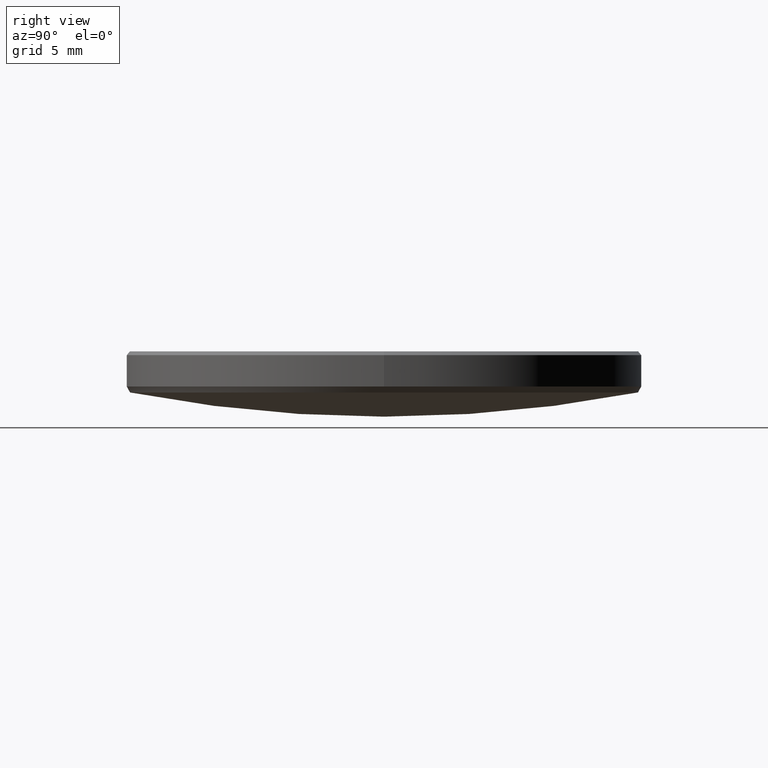
[diagram: clean part render]
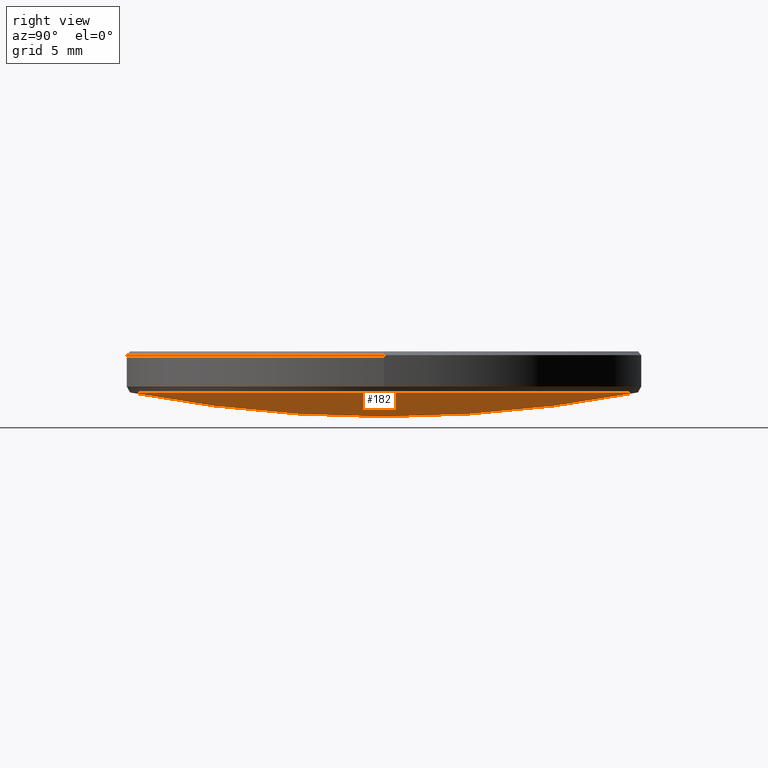
[diagram: same view with one face highlighted and labeled with its STEP entity id]
A machine part, right view. The second image highlights one B-rep face of the part: STEP entity #182.
In plain terms, the highlighted spherical surface has radius 66.15 mm.
Its self-contained STEP definition (entity closure, byte-faithful):
#7 = CARTESIAN_POINT ( 'NONE',  ( 0.000000000000000000, 4.050519288179870232E-15, 2.769430835459427254 ) ) ;
#15 = DIRECTION ( 'NONE',  ( 1.000000000000000000, -0.000000000000000000, 0.000000000000000000 ) ) ;
#27 = ORIENTED_EDGE ( 'NONE', *, *, #91, .F. ) ;
#35 = EDGE_LOOP ( 'NONE', ( #27, #104, #101, #306 ) ) ;
#58 = DIRECTION ( 'NONE',  ( 0.000000000000000000, 0.000000000000000000, -1.000000000000000000 ) ) ;
#59 = CARTESIAN_POINT ( 'NONE',  ( 0.000000000000000000, 0.000000000000000000, 3.961956115965656444 ) ) ;
#70 = DIRECTION ( 'NONE',  ( -1.000000000000000000, 0.000000000000000000, 0.000000000000000000 ) ) ;
#85 = AXIS2_PLACEMENT_3D ( 'NONE', #202, #70, #174 ) ;
#91 = EDGE_CURVE ( 'NONE', #253, #231, #308, .T. ) ;
#92 = AXIS2_PLACEMENT_3D ( 'NONE', #266, #58, #165 ) ;
#101 = ORIENTED_EDGE ( 'NONE', *, *, #237, .T. ) ;
#104 = ORIENTED_EDGE ( 'NONE', *, *, #188, .T. ) ;
#113 = DIRECTION ( 'NONE',  ( 1.000000000000000000, 0.000000000000000000, 0.000000000000000000 ) ) ;
#120 = DIRECTION ( 'NONE',  ( -1.224646799147352961E-16, -1.000000000000000000, 0.000000000000000000 ) ) ;
#126 = AXIS2_PLACEMENT_3D ( 'NONE', #172, #142, #120 ) ;
#128 = CIRCLE ( 'NONE', #312, 66.15000000000000568 ) ;
#142 = DIRECTION ( 'NONE',  ( -1.000000000000000000, 1.224646799147353207E-16, 0.000000000000000000 ) ) ;
#144 = FACE_OUTER_BOUND ( 'NONE', #35, .T. ) ;
#146 = CARTESIAN_POINT ( 'NONE',  ( 0.000000000000000000, 0.000000000000000000, 68.91943083545942272 ) ) ;
#158 = VERTEX_POINT ( 'NONE', #292 ) ;
#165 = DIRECTION ( 'NONE',  ( 1.000000000000000000, 0.000000000000000000, 0.000000000000000000 ) ) ;
#172 = CARTESIAN_POINT ( 'NONE',  ( 0.000000000000000000, 0.000000000000000000, 68.91943083545942272 ) ) ;
#174 = DIRECTION ( 'NONE',  ( 0.000000000000000000, 1.000000000000000000, 0.000000000000000000 ) ) ;
#175 = VERTEX_POINT ( 'NONE', #199 ) ;
#179 = AXIS2_PLACEMENT_3D ( 'NONE', #59, #238, #113 ) ;
#182 = ADVANCED_FACE ( 'NONE', ( #144 ), #195, .T. ) ;
#188 = EDGE_CURVE ( 'NONE', #253, #158, #128, .T. ) ;
#190 = CIRCLE ( 'NONE', #92, 12.50395849586555030 ) ;
#193 = CARTESIAN_POINT ( 'NONE',  ( -1.531293274863309419E-15, -12.50395849586554675, 3.961956115965656444 ) ) ;
#195 = SPHERICAL_SURFACE ( 'NONE', #85, 66.15000000000000568 ) ;
#199 = CARTESIAN_POINT ( 'NONE',  ( 12.50395849586555030, 0.000000000000000000, 3.961956115965656444 ) ) ;
#202 = CARTESIAN_POINT ( 'NONE',  ( 0.000000000000000000, 0.000000000000000000, 68.91943083545942272 ) ) ;
#227 = DIRECTION ( 'NONE',  ( 0.000000000000000000, 0.000000000000000000, -1.000000000000000000 ) ) ;
#231 = VERTEX_POINT ( 'NONE', #193 ) ;
#235 = CIRCLE ( 'NONE', #179, 12.50395849586555030 ) ;
#237 = EDGE_CURVE ( 'NONE', #158, #175, #190, .T. ) ;
#238 = DIRECTION ( 'NONE',  ( 0.000000000000000000, 0.000000000000000000, -1.000000000000000000 ) ) ;
#246 = EDGE_CURVE ( 'NONE', #175, #231, #235, .T. ) ;
#253 = VERTEX_POINT ( 'NONE', #7 ) ;
#266 = CARTESIAN_POINT ( 'NONE',  ( 0.000000000000000000, 0.000000000000000000, 3.961956115965656444 ) ) ;
#292 = CARTESIAN_POINT ( 'NONE',  ( 0.000000000000000000, 12.50395849586554675, 3.961956115965656444 ) ) ;
#306 = ORIENTED_EDGE ( 'NONE', *, *, #246, .T. ) ;
#308 = CIRCLE ( 'NONE', #126, 66.15000000000000568 ) ;
#312 = AXIS2_PLACEMENT_3D ( 'NONE', #146, #15, #227 ) ;